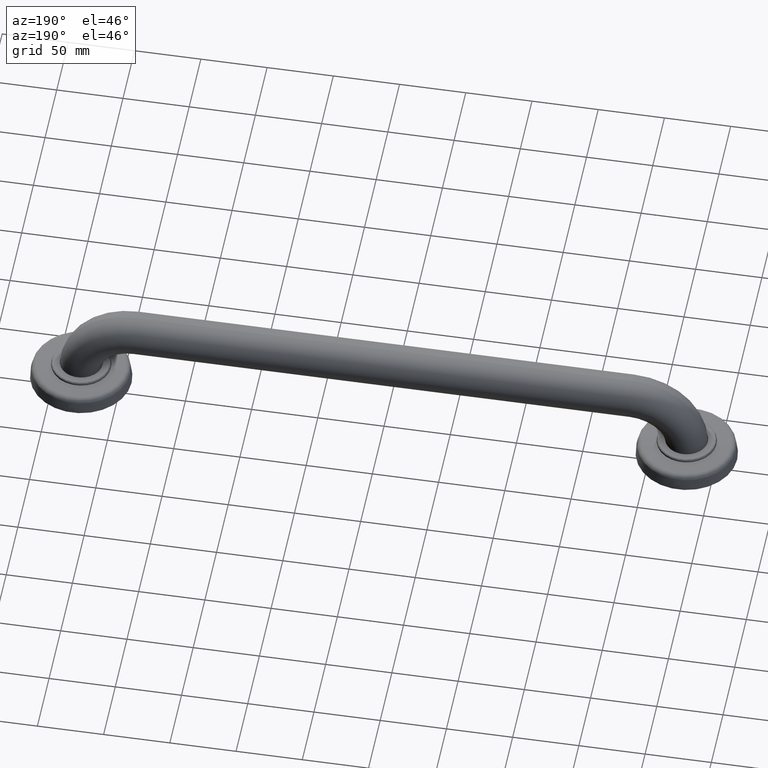
[diagram: clean part render]
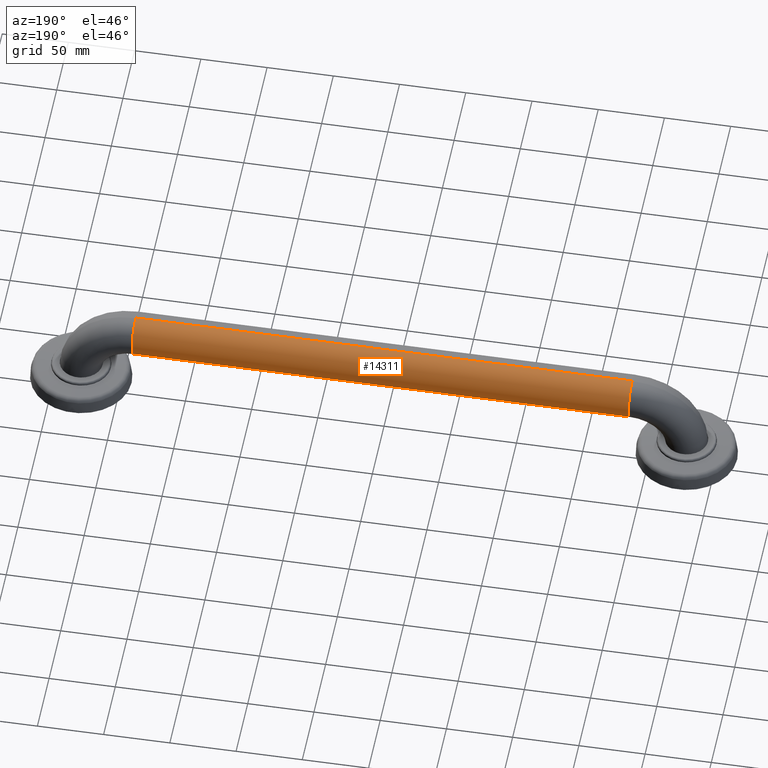
[diagram: same view with one face highlighted and labeled with its STEP entity id]
A machine part, auxiliary view. The second image highlights one B-rep face of the part: STEP entity #14311.
In plain terms, the highlighted cylindrical surface (edge-blend (fillet) strip) has radius 15.875 mm, axis along (1, 0, 0).
Its self-contained STEP definition (entity closure, byte-faithful):
#14015=CARTESIAN_POINT('',(-7.375E0,0.E0,0.E0));
#14016=DIRECTION('',(1.E0,0.E0,0.E0));
#14017=DIRECTION('',(0.E0,0.E0,-1.E0));
#14018=AXIS2_PLACEMENT_3D('',#14015,#14016,#14017);
#14020=DIRECTION('',(1.E0,0.E0,0.E0));
#14021=VECTOR('',#14020,1.475E1);
#14022=CARTESIAN_POINT('',(-7.375E0,0.E0,-6.25E-1));
#14023=LINE('',#14022,#14021);
#14029=DIRECTION('',(1.E0,0.E0,0.E0));
#14030=VECTOR('',#14029,1.475E1);
#14031=CARTESIAN_POINT('',(-7.375E0,0.E0,6.25E-1));
#14032=LINE('',#14031,#14030);
#14043=CARTESIAN_POINT('',(7.375E0,0.E0,0.E0));
#14044=DIRECTION('',(1.E0,0.E0,0.E0));
#14045=DIRECTION('',(0.E0,0.E0,-1.E0));
#14046=AXIS2_PLACEMENT_3D('',#14043,#14044,#14045);
#14191=CARTESIAN_POINT('',(-7.375E0,0.E0,-6.25E-1));
#14192=CARTESIAN_POINT('',(-7.375E0,0.E0,6.25E-1));
#14193=VERTEX_POINT('',#14191);
#14194=VERTEX_POINT('',#14192);
#14199=CARTESIAN_POINT('',(7.375E0,0.E0,-6.25E-1));
#14200=CARTESIAN_POINT('',(7.375E0,0.E0,6.25E-1));
#14201=VERTEX_POINT('',#14199);
#14202=VERTEX_POINT('',#14200);
#14297=CARTESIAN_POINT('',(-7.375E0,0.E0,0.E0));
#14298=DIRECTION('',(1.E0,0.E0,0.E0));
#14299=DIRECTION('',(0.E0,0.E0,-1.E0));
#14300=AXIS2_PLACEMENT_3D('',#14297,#14298,#14299);
#14301=CYLINDRICAL_SURFACE('',#14300,6.25E-1);
#14302=ORIENTED_EDGE('',*,*,#14291,.F.);
#14304=ORIENTED_EDGE('',*,*,#14303,.T.);
#14306=ORIENTED_EDGE('',*,*,#14305,.T.);
#14308=ORIENTED_EDGE('',*,*,#14307,.F.);
#14309=EDGE_LOOP('',(#14302,#14304,#14306,#14308));
#14310=FACE_OUTER_BOUND('',#14309,.F.);
#14311=ADVANCED_FACE('',(#14310),#14301,.T.);
#14019=CIRCLE('',#14018,6.25E-1);
#14047=CIRCLE('',#14046,6.25E-1);
#14291=EDGE_CURVE('',#14193,#14194,#14019,.T.);
#14303=EDGE_CURVE('',#14193,#14201,#14023,.T.);
#14305=EDGE_CURVE('',#14201,#14202,#14047,.T.);
#14307=EDGE_CURVE('',#14194,#14202,#14032,.T.);